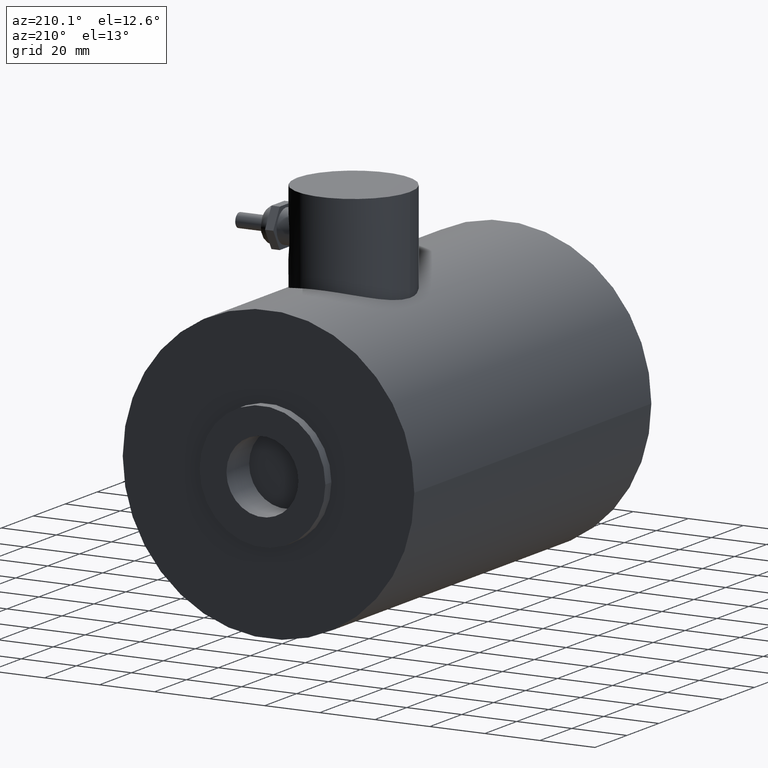
[diagram: clean part render]
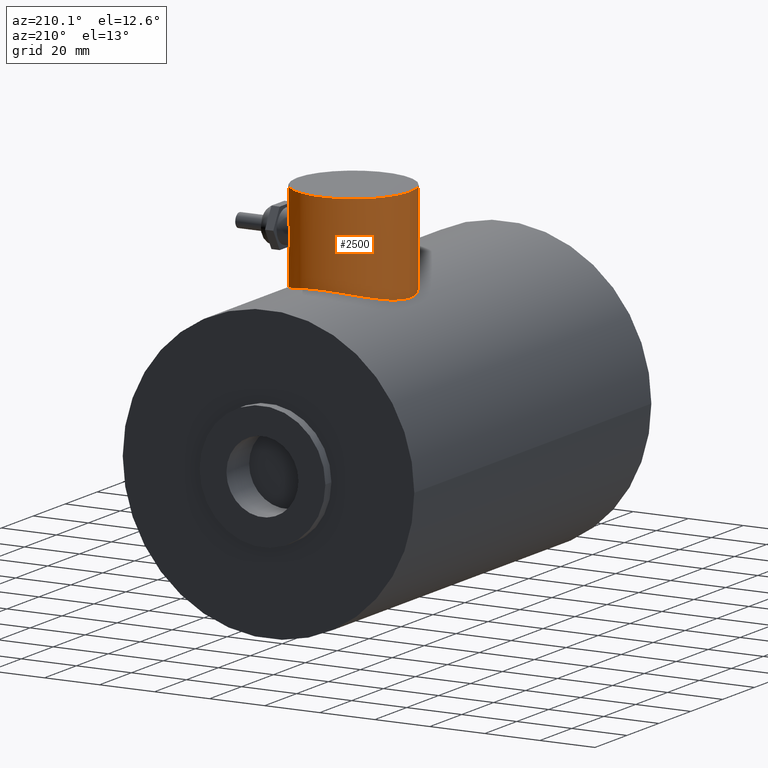
[diagram: same view with one face highlighted and labeled with its STEP entity id]
A machine part, auxiliary view. The second image highlights one B-rep face of the part: STEP entity #2500.
In plain terms, the highlighted cylindrical surface (bore or boss wall) has radius 20.5 mm, axis along (0, 0, 1).
Its self-contained STEP definition (entity closure, byte-faithful):
#208=B_SPLINE_CURVE_WITH_KNOTS('',3,(#12890,#12891,#12892,#12893,#12894,
#12895,#12896,#12897,#12898,#12899,#12900,#12901,#12902,#12903,#12904,#12905,
#12906,#12907,#12908,#12909,#12910,#12911,#12912,#12913,#12914,#12915),
 .UNSPECIFIED.,.F.,.F.,(4,2,2,2,2,2,2,2,2,2,2,2,4),(2.08150158605407,2.34044044380816,
2.59937930156224,3.11725701707041,3.64013009458928,3.90156663334871,4.16300317210814,
4.42443971086757,4.68587624962701,5.20874932714587,5.72662704265404,5.98556590040813,
6.24450475816221),.UNSPECIFIED.);
#209=B_SPLINE_CURVE_WITH_KNOTS('',3,(#12919,#12920,#12921,#12922,#12923,
#12924,#12925,#12926,#12927,#12928,#12929,#12930,#12931,#12932,#12933,#12934,
#12935,#12936,#12937,#12938,#12939,#12940,#12941,#12942,#12943,#12944,#12945),
 .UNSPECIFIED.,.F.,.F.,(4,2,2,2,2,2,3,2,2,2,2,2,4),(6.24450475816221,6.5034436159163,
6.76238247367038,7.28026018917856,7.80313326669742,8.06456980545685,8.32600634421629,
8.58744288297572,8.84887942173515,9.37175249925401,9.88963021476219,10.1485690725163,
10.4075079302704),.UNSPECIFIED.);
#210=B_SPLINE_CURVE_WITH_KNOTS('',3,(#12952,#12953,#12954,#12955,#12956,
#12957,#12958,#12959,#12960,#12961,#12962,#12963,#12964,#12965,#12966,#12967,
#12968,#12969,#12970,#12971,#12972,#12973,#12974,#12975,#12976,#12977,#12978,
#12979,#12980,#12981,#12982,#12983,#12984,#12985,#12986,#12987,#12988,#12989,
#12990,#12991,#12992,#12993,#12994,#12995,#12996,#12997,#12998,#12999,#13000,
#13001,#13002,#13003,#13004,#13005,#13006,#13007,#13008,#13009,#13010,#13011,
#13012,#13013,#13014,#13015,#13016,#13017),.UNSPECIFIED.,.T.,.F.,(4,2,2,
2,2,2,2,2,2,2,2,2,2,2,2,2,2,2,2,2,2,2,2,2,2,2,2,2,2,2,2,2,4),(0.,0.390740597873084,
0.781481195746169,1.17222179361925,1.56296239149234,1.95335999293871,2.34375759438508,
2.73415519583144,3.12455279727781,3.51495039872418,3.90534800017055,4.29574560161692,
4.68614320306329,5.07688380093637,5.46762439880946,5.85836499668254,6.24910559455563,
6.63984619242871,7.03058679030179,7.42132738817488,7.81206798604796,8.20246558749433,
8.5928631889407,8.98326079038707,9.37365839183344,9.76405599327981,10.1544535947262,
10.5448511961725,10.9352487976189,11.325989395492,11.7167299933651,12.1074705912382,
12.4982111891113),.UNSPECIFIED.);
#225=FACE_BOUND('',#551,.T.);
#399=FACE_OUTER_BOUND('',#550,.T.);
#550=EDGE_LOOP('',(#2208,#2209,#2210,#2211));
#551=EDGE_LOOP('',(#2212,#2213));
#698=LINE('',#12951,#833);
#833=VECTOR('',#3197,0.807086614173229);
#880=CIRCLE('',#2696,0.807086614173229);
#1123=VERTEX_POINT('',#12888);
#1124=VERTEX_POINT('',#12889);
#1126=VERTEX_POINT('',#12948);
#1127=VERTEX_POINT('',#12950);
#1492=EDGE_CURVE('',#1123,#1124,#208,.T.);
#1495=EDGE_CURVE('',#1124,#1123,#209,.T.);
#1496=EDGE_CURVE('',#1126,#1126,#880,.T.);
#1497=EDGE_CURVE('',#1126,#1127,#698,.T.);
#1498=EDGE_CURVE('',#1127,#1127,#210,.T.);
#2208=ORIENTED_EDGE('',*,*,#1496,.F.);
#2209=ORIENTED_EDGE('',*,*,#1497,.T.);
#2210=ORIENTED_EDGE('',*,*,#1498,.F.);
#2211=ORIENTED_EDGE('',*,*,#1497,.F.);
#2212=ORIENTED_EDGE('',*,*,#1492,.T.);
#2213=ORIENTED_EDGE('',*,*,#1495,.T.);
#2360=CYLINDRICAL_SURFACE('',#2695,0.807086614173229);
#2500=ADVANCED_FACE('',(#399,#225),#2360,.T.);
#2695=AXIS2_PLACEMENT_3D('',#12947,#3193,#3194);
#2696=AXIS2_PLACEMENT_3D('',#12949,#3195,#3196);
#3193=DIRECTION('center_axis',(0.,0.,1.));
#3194=DIRECTION('ref_axis',(1.,0.,0.));
#3195=DIRECTION('center_axis',(0.,0.,1.));
#3196=DIRECTION('ref_axis',(1.,0.,0.));
#3197=DIRECTION('',(0.,0.,-1.));
#12888=CARTESIAN_POINT('',(0.807086614173229,3.75,3.1598031496063));
#12889=CARTESIAN_POINT('',(0.807086614173229,3.75,2.11255905511811));
#12890=CARTESIAN_POINT('Ctrl Pts',(0.807086614173229,3.75,3.1598031496063));
#12891=CARTESIAN_POINT('Ctrl Pts',(0.807086614173229,3.78398147739555,3.1598031496063));
#12892=CARTESIAN_POINT('Ctrl Pts',(0.804892575235416,3.81879941180725,3.15644185977266));
#12893=CARTESIAN_POINT('Ctrl Pts',(0.796054055324587,3.88741673016277,3.14266037837374));
#12894=CARTESIAN_POINT('Ctrl Pts',(0.789414663972882,3.92121788428467,3.1322457373812));
#12895=CARTESIAN_POINT('Ctrl Pts',(0.764319866982765,4.01760609499763,3.0916254435567));
#12896=CARTESIAN_POINT('Ctrl Pts',(0.74045315171569,4.07511385663128,3.05158064650109));
#12897=CARTESIAN_POINT('Ctrl Pts',(0.693614582431741,4.16583498447545,2.96085951865691));
#12898=CARTESIAN_POINT('Ctrl Pts',(0.667052238342781,4.20558741295157,2.9034541165197));
#12899=CARTESIAN_POINT('Ctrl Pts',(0.63690790475914,4.24600364876253,2.80754049256915));
#12900=CARTESIAN_POINT('Ctrl Pts',(0.628520918396346,4.25638953148984,2.77391704962915));
#12901=CARTESIAN_POINT('Ctrl Pts',(0.617136934627805,4.27020275579352,2.70539555768172));
#12902=CARTESIAN_POINT('Ctrl Pts',(0.614173228346457,4.27362204724409,2.67049035941725));
#12903=CARTESIAN_POINT('Ctrl Pts',(0.614173228346457,4.27362204724409,2.60187184530716));
#12904=CARTESIAN_POINT('Ctrl Pts',(0.617136934627805,4.27020275579352,2.56696664704269));
#12905=CARTESIAN_POINT('Ctrl Pts',(0.628520918396347,4.25638953148984,2.49844515509526));
#12906=CARTESIAN_POINT('Ctrl Pts',(0.63690790475914,4.24600364876253,2.46482171215525));
#12907=CARTESIAN_POINT('Ctrl Pts',(0.667052238342781,4.20558741295157,2.36890808820471));
#12908=CARTESIAN_POINT('Ctrl Pts',(0.693614582431741,4.16583498447545,2.31150268606749));
#12909=CARTESIAN_POINT('Ctrl Pts',(0.74045315171569,4.07511385663128,2.22078155822332));
#12910=CARTESIAN_POINT('Ctrl Pts',(0.764319866982765,4.01760609499763,2.18073676116771));
#12911=CARTESIAN_POINT('Ctrl Pts',(0.789414663972882,3.92121788428467,2.14011646734321));
#12912=CARTESIAN_POINT('Ctrl Pts',(0.796054055324587,3.88741673016277,2.12970182635067));
#12913=CARTESIAN_POINT('Ctrl Pts',(0.804892575235416,3.81879941180725,2.11592034495175));
#12914=CARTESIAN_POINT('Ctrl Pts',(0.807086614173229,3.78398147739555,2.11255905511811));
#12915=CARTESIAN_POINT('Ctrl Pts',(0.807086614173229,3.75,2.11255905511811));
#12919=CARTESIAN_POINT('Ctrl Pts',(0.807086614173229,3.75,2.11255905511811));
#12920=CARTESIAN_POINT('Ctrl Pts',(0.807086614173229,3.71601852260445,2.11255905511811));
#12921=CARTESIAN_POINT('Ctrl Pts',(0.804892575235416,3.68120058819275,2.11592034495175));
#12922=CARTESIAN_POINT('Ctrl Pts',(0.796054055324587,3.61258326983723,2.12970182635067));
#12923=CARTESIAN_POINT('Ctrl Pts',(0.789414663972882,3.57878211571533,2.14011646734321));
#12924=CARTESIAN_POINT('Ctrl Pts',(0.764319866982765,3.48239390500237,2.18073676116771));
#12925=CARTESIAN_POINT('Ctrl Pts',(0.74045315171569,3.42488614336872,2.22078155822332));
#12926=CARTESIAN_POINT('Ctrl Pts',(0.693614582431741,3.33416501552455,2.31150268606749));
#12927=CARTESIAN_POINT('Ctrl Pts',(0.667052238342781,3.29441258704843,2.36890808820471));
#12928=CARTESIAN_POINT('Ctrl Pts',(0.63690790475914,3.25399635123747,2.46482171215525));
#12929=CARTESIAN_POINT('Ctrl Pts',(0.628520918396346,3.24361046851016,2.49844515509526));
#12930=CARTESIAN_POINT('Ctrl Pts',(0.617136934627805,3.22979724420648,2.56696664704269));
#12931=CARTESIAN_POINT('Ctrl Pts',(0.614173228346457,3.22637795275591,2.60187184530716));
#12932=CARTESIAN_POINT('Ctrl Pts',(0.614173228346457,3.22637795275591,2.6361811023622));
#12933=CARTESIAN_POINT('Ctrl Pts',(0.614173228346457,3.22637795275591,2.67049035941725));
#12934=CARTESIAN_POINT('Ctrl Pts',(0.617136934627805,3.22979724420648,2.70539555768172));
#12935=CARTESIAN_POINT('Ctrl Pts',(0.628520918396346,3.24361046851016,2.77391704962915));
#12936=CARTESIAN_POINT('Ctrl Pts',(0.63690790475914,3.25399635123747,2.80754049256915));
#12937=CARTESIAN_POINT('Ctrl Pts',(0.667052238342781,3.29441258704843,2.9034541165197));
#12938=CARTESIAN_POINT('Ctrl Pts',(0.693614582431741,3.33416501552455,2.96085951865691));
#12939=CARTESIAN_POINT('Ctrl Pts',(0.74045315171569,3.42488614336872,3.05158064650109));
#12940=CARTESIAN_POINT('Ctrl Pts',(0.764319866982765,3.48239390500237,3.0916254435567));
#12941=CARTESIAN_POINT('Ctrl Pts',(0.789414663972882,3.57878211571533,3.1322457373812));
#12942=CARTESIAN_POINT('Ctrl Pts',(0.796054055324587,3.61258326983723,3.14266037837374));
#12943=CARTESIAN_POINT('Ctrl Pts',(0.804892575235416,3.68120058819275,3.15644185977266));
#12944=CARTESIAN_POINT('Ctrl Pts',(0.807086614173229,3.71601852260445,3.1598031496063));
#12945=CARTESIAN_POINT('Ctrl Pts',(0.807086614173229,3.75,3.1598031496063));
#12947=CARTESIAN_POINT('Origin',(0.,3.75,0.));
#12948=CARTESIAN_POINT('',(-0.807086614173229,3.75,3.26610236220472));
#12949=CARTESIAN_POINT('Origin',(0.,3.75,3.26610236220472));
#12950=CARTESIAN_POINT('',(-0.807086614173229,3.75,1.92245577250099));
#12951=CARTESIAN_POINT('',(-0.807086614173229,3.75,0.));
#12952=CARTESIAN_POINT('Ctrl Pts',(-0.807086614173229,3.75,1.92245577250099));
#12953=CARTESIAN_POINT('Ctrl Pts',(-0.807086614173229,3.80127829368413,
1.92245577250099));
#12954=CARTESIAN_POINT('Ctrl Pts',(-0.802121304566818,3.85411045105601,
1.92456528366019));
#12955=CARTESIAN_POINT('Ctrl Pts',(-0.781425883805728,3.95883285580296,
1.93306070938234));
#12956=CARTESIAN_POINT('Ctrl Pts',(-0.765702384735189,4.01072521745136,
1.93943666461303));
#12957=CARTESIAN_POINT('Ctrl Pts',(-0.724366670603454,4.10995942182462,
1.95525128313378));
#12958=CARTESIAN_POINT('Ctrl Pts',(-0.698721686478817,4.1573904873613,1.96468448706365));
#12959=CARTESIAN_POINT('Ctrl Pts',(-0.639662820423411,4.24498533389861,
1.98469861814204));
#12960=CARTESIAN_POINT('Ctrl Pts',(-0.606243078819302,4.28514975695426,
1.99525943869047));
#12961=CARTESIAN_POINT('Ctrl Pts',(-0.535180960207128,4.35621187556643,
2.01548253308796));
#12962=CARTESIAN_POINT('Ctrl Pts',(-0.495031484791362,4.38962768093385,
2.0258779974267));
#12963=CARTESIAN_POINT('Ctrl Pts',(-0.407428802777808,4.44869987257126,
2.0452969471514));
#12964=CARTESIAN_POINT('Ctrl Pts',(-0.359974903511526,4.47436078308284,
2.05430354114747));
#12965=CARTESIAN_POINT('Ctrl Pts',(-0.260694622860297,4.51571456740914,
2.06924703317964));
#12966=CARTESIAN_POINT('Ctrl Pts',(-0.20877967398831,4.53144030295316,2.07518520962808));
#12967=CARTESIAN_POINT('Ctrl Pts',(-0.10404979075198,4.55212937884197,2.08306414869452));
#12968=CARTESIAN_POINT('Ctrl Pts',(-0.0512332810297071,4.55708661417323,
2.085));
#12969=CARTESIAN_POINT('Ctrl Pts',(0.0512332810297072,4.55708661417323,
2.085));
#12970=CARTESIAN_POINT('Ctrl Pts',(0.10404979075198,4.55212937884197,2.08306414869452));
#12971=CARTESIAN_POINT('Ctrl Pts',(0.20877967398831,4.53144030295316,2.07518520962808));
#12972=CARTESIAN_POINT('Ctrl Pts',(0.260694622860297,4.51571456740914,2.06924703317964));
#12973=CARTESIAN_POINT('Ctrl Pts',(0.359974903511526,4.47436078308284,2.05430354114747));
#12974=CARTESIAN_POINT('Ctrl Pts',(0.407428802777808,4.44869987257126,2.0452969471514));
#12975=CARTESIAN_POINT('Ctrl Pts',(0.495031484791362,4.38962768093385,2.0258779974267));
#12976=CARTESIAN_POINT('Ctrl Pts',(0.535180960207128,4.35621187556643,2.01548253308796));
#12977=CARTESIAN_POINT('Ctrl Pts',(0.606243078819302,4.28514975695426,1.99525943869047));
#12978=CARTESIAN_POINT('Ctrl Pts',(0.639662820423411,4.24498533389861,1.98469861814204));
#12979=CARTESIAN_POINT('Ctrl Pts',(0.698721686478817,4.1573904873613,1.96468448706365));
#12980=CARTESIAN_POINT('Ctrl Pts',(0.724366670603454,4.10995942182462,1.95525128313378));
#12981=CARTESIAN_POINT('Ctrl Pts',(0.765702384735189,4.01072521745136,1.93943666461303));
#12982=CARTESIAN_POINT('Ctrl Pts',(0.781425883805728,3.95883285580296,1.93306070938234));
#12983=CARTESIAN_POINT('Ctrl Pts',(0.802121304566818,3.85411045105601,1.92456528366019));
#12984=CARTESIAN_POINT('Ctrl Pts',(0.807086614173229,3.80127829368413,1.92245577250099));
#12985=CARTESIAN_POINT('Ctrl Pts',(0.807086614173229,3.69872170631587,1.92245577250099));
#12986=CARTESIAN_POINT('Ctrl Pts',(0.802121304566818,3.64588954894399,1.92456528366019));
#12987=CARTESIAN_POINT('Ctrl Pts',(0.781425883805728,3.54116714419704,1.93306070938234));
#12988=CARTESIAN_POINT('Ctrl Pts',(0.765702384735189,3.48927478254864,1.93943666461303));
#12989=CARTESIAN_POINT('Ctrl Pts',(0.724366670603453,3.39004057817538,1.95525128313378));
#12990=CARTESIAN_POINT('Ctrl Pts',(0.698721686478817,3.3426095126387,1.96468448706365));
#12991=CARTESIAN_POINT('Ctrl Pts',(0.639662820423411,3.25501466610139,1.98469861814204));
#12992=CARTESIAN_POINT('Ctrl Pts',(0.606243078819302,3.21485024304574,1.99525943869047));
#12993=CARTESIAN_POINT('Ctrl Pts',(0.535180960207128,3.14378812443357,2.01548253308796));
#12994=CARTESIAN_POINT('Ctrl Pts',(0.495031484791362,3.11037231906615,2.0258779974267));
#12995=CARTESIAN_POINT('Ctrl Pts',(0.407428802777809,3.05130012742874,2.0452969471514));
#12996=CARTESIAN_POINT('Ctrl Pts',(0.359974903511526,3.02563921691716,2.05430354114747));
#12997=CARTESIAN_POINT('Ctrl Pts',(0.260694622860297,2.98428543259086,2.06924703317964));
#12998=CARTESIAN_POINT('Ctrl Pts',(0.20877967398831,2.96855969704684,2.07518520962808));
#12999=CARTESIAN_POINT('Ctrl Pts',(0.10404979075198,2.94787062115803,2.08306414869452));
#13000=CARTESIAN_POINT('Ctrl Pts',(0.0512332810297072,2.94291338582677,
2.085));
#13001=CARTESIAN_POINT('Ctrl Pts',(-0.0512332810297073,2.94291338582677,
2.085));
#13002=CARTESIAN_POINT('Ctrl Pts',(-0.10404979075198,2.94787062115803,2.08306414869452));
#13003=CARTESIAN_POINT('Ctrl Pts',(-0.20877967398831,2.96855969704684,2.07518520962808));
#13004=CARTESIAN_POINT('Ctrl Pts',(-0.260694622860297,2.98428543259086,
2.06924703317964));
#13005=CARTESIAN_POINT('Ctrl Pts',(-0.359974903511526,3.02563921691716,
2.05430354114747));
#13006=CARTESIAN_POINT('Ctrl Pts',(-0.407428802777808,3.05130012742874,
2.0452969471514));
#13007=CARTESIAN_POINT('Ctrl Pts',(-0.495031484791362,3.11037231906615,
2.02587799742671));
#13008=CARTESIAN_POINT('Ctrl Pts',(-0.535180960207128,3.14378812443357,
2.01548253308796));
#13009=CARTESIAN_POINT('Ctrl Pts',(-0.606243078819302,3.21485024304574,
1.99525943869047));
#13010=CARTESIAN_POINT('Ctrl Pts',(-0.639662820423411,3.25501466610139,
1.98469861814204));
#13011=CARTESIAN_POINT('Ctrl Pts',(-0.698721686478817,3.3426095126387,1.96468448706365));
#13012=CARTESIAN_POINT('Ctrl Pts',(-0.724366670603454,3.39004057817538,
1.95525128313378));
#13013=CARTESIAN_POINT('Ctrl Pts',(-0.765702384735189,3.48927478254864,
1.93943666461303));
#13014=CARTESIAN_POINT('Ctrl Pts',(-0.781425883805728,3.54116714419704,
1.93306070938234));
#13015=CARTESIAN_POINT('Ctrl Pts',(-0.802121304566818,3.64588954894399,
1.92456528366019));
#13016=CARTESIAN_POINT('Ctrl Pts',(-0.807086614173229,3.69872170631587,
1.92245577250099));
#13017=CARTESIAN_POINT('Ctrl Pts',(-0.807086614173229,3.75,1.92245577250099));